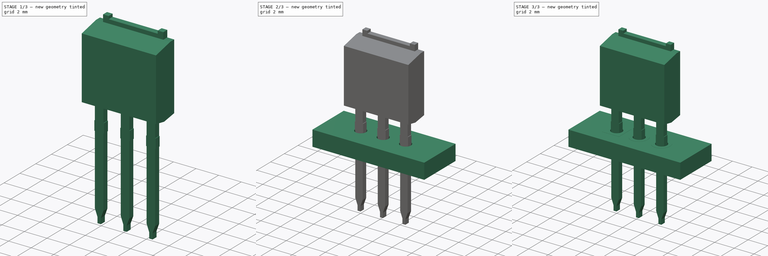
[diagram: build sequence overview — one tinted view per stage of 3, left to right]
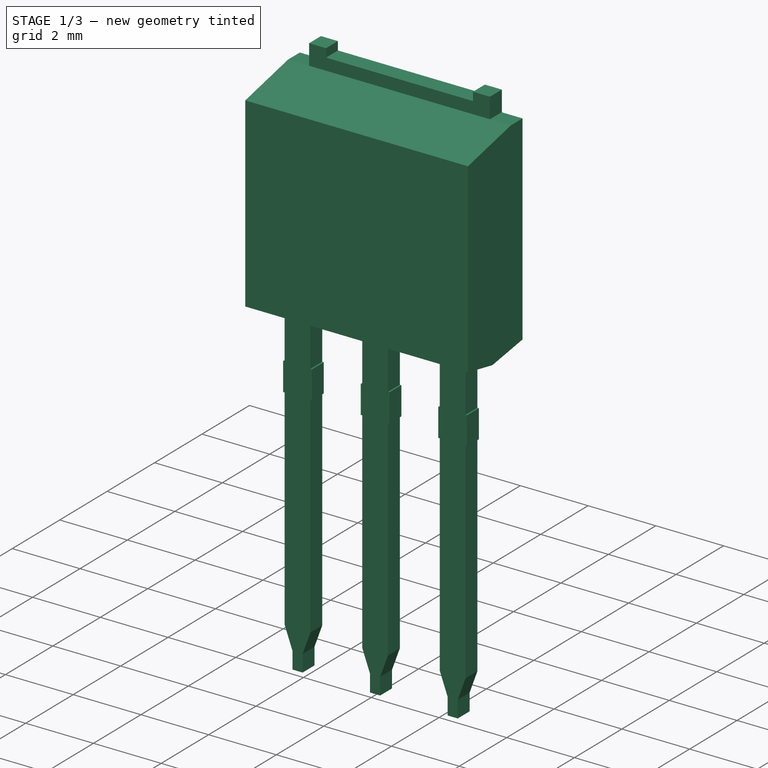
[diagram: stage 1 of 3 — iso view after this stage's code; geometry added in this stage tinted green]
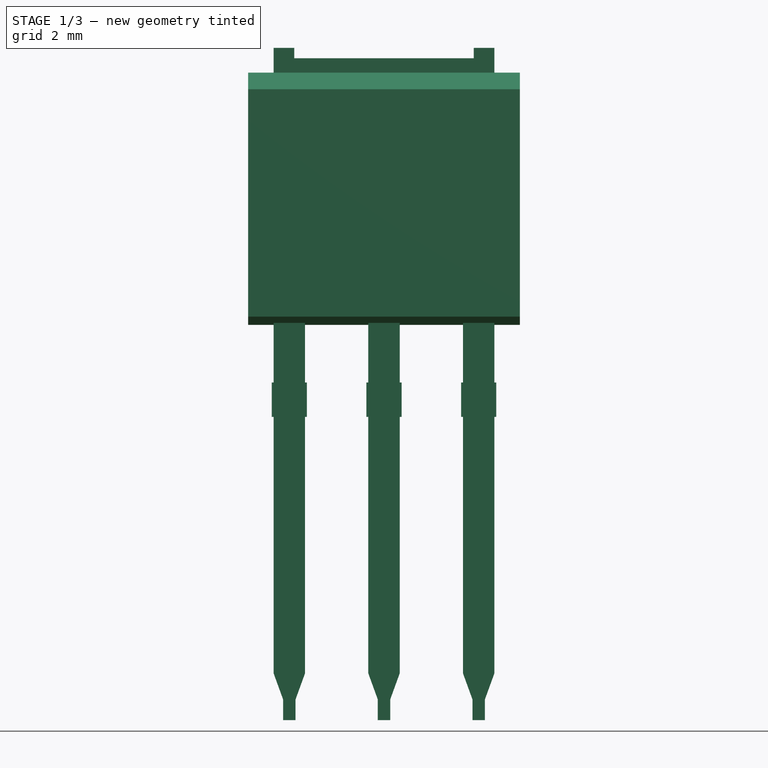
[diagram: stage 1 of 3 — front view after this stage's code; geometry added in this stage tinted green]
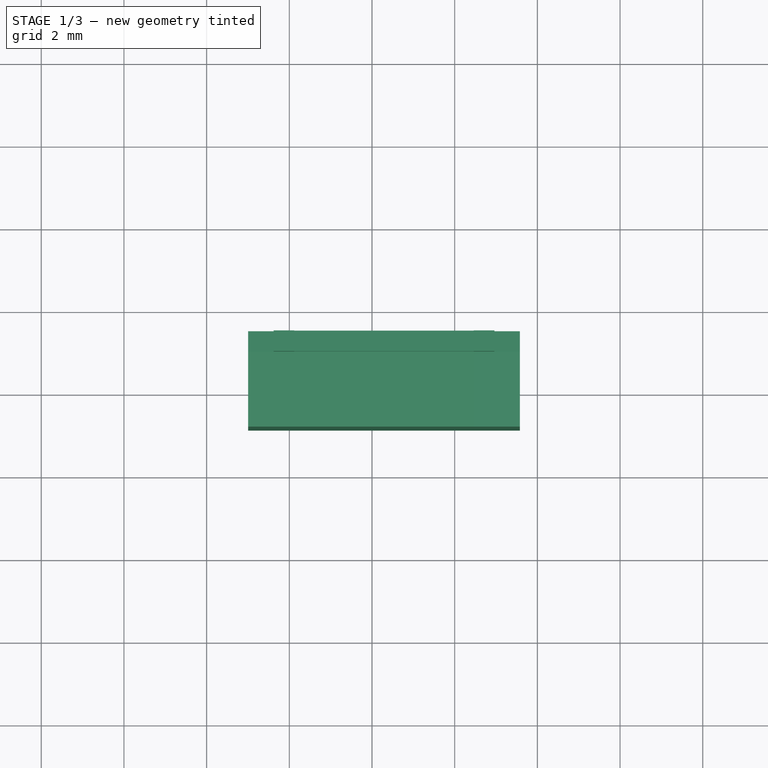
[diagram: stage 1 of 3 — top view after this stage's code; geometry added in this stage tinted green]
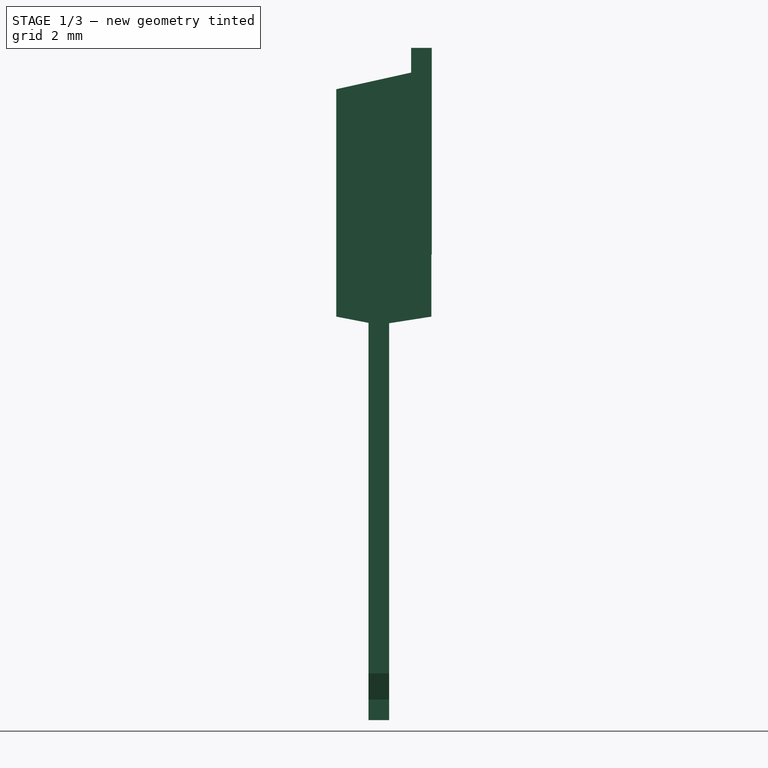
[diagram: stage 1 of 3 — right view after this stage's code; geometry added in this stage tinted green]
FCSTD DOCUMENT  (FreeCAD 0.16R6712 (Git))
Label: TO-251-3_Vertical
License: All rights reserved
LicenseURL: http://en.wikipedia.org/wiki/All_rights_reserved
objects: Part::FeaturePython×7, Sketcher::SketchObject×3, PartDesign::Pad×3, App::DocumentObjectGroup×1, Part::MultiFuse×1
note: 17 computed .brp shape members not serialized (recipe doc carries the construction recipe); baked Part::Feature solids carry a one-line shape summary decoded from their .brp

FEATURE [Sketcher::SketchObject] Sketch
  Placement = pos=(0,0,0) rot=(1,0,0;1.5708rad)
  expr: Constraints[61] = (1.6 + 2.28) / 2 - (1.52 + 0.7) / 2
  expr: Constraints[51] = (0.64 + 0.88) / 2
  expr: Constraints[56] = (8.9 + 9.65) / 2 - (1.6 + 2.28) / 2
  sketch-geometry (74):
    g0: LineSegment StartX=-0.425 StartY=0.83 StartZ=0 EndX=-0.38 EndY=0.83 EndZ=0
    g1: LineSegment StartX=0.425 StartY=0.83 StartZ=0 EndX=0.425 EndY=0 EndZ=0
    g2: LineSegment StartX=0.425 StartY=0 StartZ=0 EndX=0.38 EndY=0 EndZ=0
    g3: LineSegment StartX=-0.425 StartY=0 StartZ=0 EndX=-0.425 EndY=0.83 EndZ=0
    g4: LineSegment StartX=0.38 StartY=0 StartZ=0 EndX=0.38 EndY=-6.20308 EndZ=0
    g5: LineSegment StartX=-0.38 StartY=-6.20308 StartZ=0 EndX=-0.38 EndY=0 EndZ=0
    g6: LineSegment StartX=-0.38 StartY=0 StartZ=0 EndX=-0.425 EndY=0 EndZ=0
    g7: LineSegment StartX=0.38 StartY=0.83 StartZ=0 EndX=0.38 EndY=3.83 EndZ=0
    g8: LineSegment StartX=0.38 StartY=3.83 StartZ=0 EndX=-0.38 EndY=3.83 EndZ=0
    g9: LineSegment StartX=-0.38 StartY=3.83 StartZ=0 EndX=-0.38 EndY=0.83 EndZ=0
    g10: LineSegment StartX=0.38 StartY=0.83 StartZ=0 EndX=0.425 EndY=0.83 EndZ=0
    g11: LineSegment StartX=0.15 StartY=-6.835 StartZ=0 EndX=0.15 EndY=-7.335 EndZ=0
    g12: LineSegment StartX=0.15 StartY=-7.335 StartZ=0 EndX=-0.15 EndY=-7.335 EndZ=0
    g13: LineSegment StartX=-0.15 StartY=-7.335 StartZ=0 EndX=-0.15 EndY=-6.835 EndZ=0
    g14: LineSegment StartX=-0.38 StartY=-6.20308 StartZ=0 EndX=-0.15 EndY=-6.835 EndZ=0
    g15: LineSegment StartX=0.38 StartY=-6.20308 StartZ=0 EndX=0.15 EndY=-6.835 EndZ=0
    g16: LineSegment [constr] StartX=0 StartY=-7.335 StartZ=0 EndX=0 EndY=3.83 EndZ=0
    g17: LineSegment [constr] StartX=-0.38 StartY=-6.20308 StartZ=0 EndX=0.38 EndY=-6.20308 EndZ=0
    g18: LineSegment [constr] StartX=-0.15 StartY=-6.835 StartZ=0 EndX=0.15 EndY=-6.835 EndZ=0
    g19: LineSegment [constr] StartX=-0.38 StartY=0 StartZ=0 EndX=0.38 EndY=0 EndZ=0
    g20: LineSegment [constr] StartX=-0.38 StartY=0.83 StartZ=0 EndX=0.38 EndY=0.83 EndZ=0
    g21: GeomPoint [constr] X=0 Y=0.83 Z=0
    g22: GeomPoint [constr] X=0 Y=0 Z=0
    g23: GeomPoint [constr] X=0 Y=-6.20308 Z=0
    g24: LineSegment StartX=1.865 StartY=0.83 StartZ=0 EndX=1.91 EndY=0.83 EndZ=0
    g25: LineSegment StartX=2.715 StartY=0.83 StartZ=0 EndX=2.715 EndY=0 EndZ=0
    g26: LineSegment StartX=2.715 StartY=0 StartZ=0 EndX=2.67 EndY=0 EndZ=0
    g27: LineSegment StartX=1.865 StartY=0 StartZ=0 EndX=1.865 EndY=0.83 EndZ=0
    g28: LineSegment StartX=2.67 StartY=0 StartZ=0 EndX=2.67 EndY=-6.20308 EndZ=0
    g29: LineSegment StartX=1.91 StartY=-6.20308 StartZ=0 EndX=1.91 EndY=0 EndZ=0
    g30: LineSegment StartX=1.91 StartY=0 StartZ=0 EndX=1.865 EndY=0 EndZ=0
    g31: LineSegment StartX=2.67 StartY=0.83 StartZ=0 EndX=2.67 EndY=3.83 EndZ=0
    g32: LineSegment StartX=2.67 StartY=3.83 StartZ=0 EndX=1.91 EndY=3.83 EndZ=0
    g33: LineSegment StartX=1.91 StartY=3.83 StartZ=0 EndX=1.91 EndY=0.83 EndZ=0
    g34: LineSegment StartX=2.67 StartY=0.83 StartZ=0 EndX=2.715 EndY=0.83 EndZ=0
    g35: LineSegment StartX=2.44 StartY=-6.835 StartZ=0 EndX=2.44 EndY=-7.335 EndZ=0
    g36: LineSegment StartX=2.44 StartY=-7.335 StartZ=0 EndX=2.14 EndY=-7.335 EndZ=0
    g37: LineSegment StartX=2.14 StartY=-7.335 StartZ=0 EndX=2.14 EndY=-6.835 EndZ=0
    g38: LineSegment StartX=1.91 StartY=-6.20308 StartZ=0 EndX=2.14 EndY=-6.835 EndZ=0
    g39: LineSegment StartX=2.67 StartY=-6.20308 StartZ=0 EndX=2.44 EndY=-6.835 EndZ=0
    g40: LineSegment [constr] StartX=2.29 StartY=-7.335 StartZ=0 EndX=2.29 EndY=3.83 EndZ=0
    g41: LineSegment [constr] StartX=1.91 StartY=-6.20308 StartZ=0 EndX=2.67 EndY=-6.20308 EndZ=0
    g42: LineSegment [constr] StartX=2.14 StartY=-6.835 StartZ=0 EndX=2.44 EndY=-6.835 EndZ=0
    g43: LineSegment [constr] StartX=1.91 StartY=0 StartZ=0 EndX=2.67 EndY=0 EndZ=0
    g44: LineSegment [constr] StartX=1.91 StartY=0.83 StartZ=0 EndX=2.67 EndY=0.83 EndZ=0
    g45: GeomPoint [constr] X=2.29 Y=0.83 Z=0
    g46: GeomPoint [constr] X=2.29 Y=0 Z=0
    g47: GeomPoint [constr] X=2.29 Y=-6.20308 Z=0
    g48: LineSegment [constr] StartX=0 StartY=-7.335 StartZ=0 EndX=2.29 EndY=-7.335 EndZ=0
    g49: LineSegment StartX=4.155 StartY=0.83 StartZ=0 EndX=4.2 EndY=0.83 EndZ=0
    g50: LineSegment StartX=5.005 StartY=0.83 StartZ=0 EndX=5.005 EndY=0 EndZ=0
    g51: LineSegment StartX=5.005 StartY=0 StartZ=0 EndX=4.96 EndY=0 EndZ=0
    g52: LineSegment StartX=4.155 StartY=0 StartZ=0 EndX=4.155 EndY=0.83 EndZ=0
    g53: LineSegment StartX=4.96 StartY=0 StartZ=0 EndX=4.96 EndY=-6.20308 EndZ=0
    g54: LineSegment StartX=4.2 StartY=-6.20308 StartZ=0 EndX=4.2 EndY=0 EndZ=0
    g55: LineSegment StartX=4.2 StartY=0 StartZ=0 EndX=4.155 EndY=0 EndZ=0
    g56: LineSegment StartX=4.96 StartY=0.83 StartZ=0 EndX=4.96 EndY=3.83 EndZ=0
    g57: LineSegment StartX=4.96 StartY=3.83 StartZ=0 EndX=4.2 EndY=3.83 EndZ=0
    g58: LineSegment StartX=4.2 StartY=3.83 StartZ=0 EndX=4.2 EndY=0.83 EndZ=0
    g59: LineSegment StartX=4.96 StartY=0.83 StartZ=0 EndX=5.005 EndY=0.83 EndZ=0
    g60: LineSegment StartX=4.73 StartY=-6.835 StartZ=0 EndX=4.73 EndY=-7.335 EndZ=0
    g61: LineSegment StartX=4.73 StartY=-7.335 StartZ=0 EndX=4.43 EndY=-7.335 EndZ=0
    g62: LineSegment StartX=4.43 StartY=-7.335 StartZ=0 EndX=4.43 EndY=-6.835 EndZ=0
    g63: LineSegment StartX=4.2 StartY=-6.20308 StartZ=0 EndX=4.43 EndY=-6.835 EndZ=0
    g64: LineSegment StartX=4.96 StartY=-6.20308 StartZ=0 EndX=4.73 EndY=-6.835 EndZ=0
    g65: LineSegment [constr] StartX=4.58 StartY=-7.335 StartZ=0 EndX=4.58 EndY=3.83 EndZ=0
    g66: LineSegment [constr] StartX=4.2 StartY=-6.20308 StartZ=0 EndX=4.96 EndY=-6.20308 EndZ=0
    g67: LineSegment [constr] StartX=4.43 StartY=-6.835 StartZ=0 EndX=4.73 EndY=-6.835 EndZ=0
    g68: LineSegment [constr] StartX=4.2 StartY=0 StartZ=0 EndX=4.96 EndY=0 EndZ=0
    g69: LineSegment [constr] StartX=4.2 StartY=0.83 StartZ=0 EndX=4.96 EndY=0.83 EndZ=0
    g70: GeomPoint [constr] X=4.58 Y=0.83 Z=0
    g71: GeomPoint [constr] X=4.58 Y=0 Z=0
    g72: GeomPoint [constr] X=4.58 Y=-6.20308 Z=0
    g73: LineSegment [constr] StartX=2.29 StartY=-7.335 StartZ=0 EndX=4.58 EndY=-7.335 EndZ=0
  constraints (196):
    c: Coincident(g10,g1)
    c: Coincident(g1,g2)
    c: Coincident(g6,g3)
    c: Coincident(g3,g0)
    c: Horizontal(g0)
    c: Horizontal(g2)
    c: Vertical(g1)
    c: Vertical(g3)
    c: Vertical(g4)
    c: Vertical(g5)
    c: PointOnObject(g5,g2)
    c: PointOnObject(g6,g5)
    c: Tangent(g2,g6)
    c: Coincident(g2,g4)
    c: Coincident(g7,g8)
    c: Coincident(g8,g9)
    c: Horizontal(g8)
    c: Vertical(g7)
    c: Vertical(g9)
    c: PointOnObject(g9,g0)
    c: PointOnObject(g0,g9)
    c: Tangent(g0,g10)
    c: Coincident(g11,g12)
    c: Coincident(g12,g13)
    c: Horizontal(g12)
    c: Vertical(g11)
    c: Vertical(g13)
    c: Coincident(g15,g4)
    c: Coincident(g5,g14)
    c: PointOnObject(g16,g12)
    c: PointOnObject(g16,g8)
    c: Symmetric(g8,g8,g16)
    c: Symmetric(g12,g12,g16)
    c: Coincident(g13,g14)
    c: Coincident(g11,g15)
    c: Coincident(g17,g5)
    c: Horizontal(g17)
    c: Coincident(g18,g13)
    c: Horizontal(g18)
    c: Coincident(g19,g5)
    c: Coincident(g19,g2)
    c: Coincident(g20,g0)
    c: Coincident(g20,g10)
    c: Coincident(g7,g10)
    c: PointOnObject(g21,g16)
    c: PointOnObject(g22,g16)
    c: PointOnObject(g23,g16)
    c: Coincident(g11,g18)
    c: Symmetric(g17,g17,g23)
    c: Symmetric(g19,g19,g22)
    c: Symmetric(g20,g20,g21)
    c: DistanceX(g17,g17) = 0.76
    c: Equal(g19,g20)
    c: DistanceX(g0,g1) = 0.85
    c: Equal(g0,g10)
    c: PointOnObject(g1,g-1)
    c: DistanceY(g16,g-1) = 7.335
    c: DistanceY(g13,g13) = 0.5
    c: DistanceX(g12,g12) = 0.3
    c: Angle(g4,g15) = 2.79253
    c: Coincident(g17,g4)
    c: DistanceY(g3,g0) = 0.83
    c: DistanceY(g9,g9) = 3
    c: Coincident(g34,g25)
    c: Coincident(g25,g26)
    c: Coincident(g30,g27)
    c: Coincident(g27,g24)
    c: Horizontal(g24)
    c: Horizontal(g26)
    c: Vertical(g25)
    c: Vertical(g27)
    c: Vertical(g28)
    c: Vertical(g29)
    c: PointOnObject(g29,g26)
    c: PointOnObject(g30,g29)
    c: Tangent(g26,g30)
    c: Coincident(g26,g28)
    c: Coincident(g31,g32)
    c: Coincident(g32,g33)
    c: Horizontal(g32)
    c: Vertical(g31)
    c: Vertical(g33)
    c: PointOnObject(g33,g24)
    c: PointOnObject(g24,g33)
    c: Tangent(g24,g34)
    c: Coincident(g35,g36)
    c: Coincident(g36,g37)
    c: Horizontal(g36)
    c: Vertical(g35)
    c: Vertical(g37)
    c: Coincident(g39,g28)
    c: Coincident(g29,g38)
    c: PointOnObject(g40,g36)
    c: PointOnObject(g40,g32)
    c: Symmetric(g32,g32,g40)
    c: Symmetric(g36,g36,g40)
    c: Coincident(g37,g38)
    c: Coincident(g35,g39)
    c: Coincident(g41,g29)
    c: Horizontal(g41)
    c: Coincident(g42,g37)
    c: Horizontal(g42)
    c: Coincident(g43,g29)
    c: Coincident(g43,g26)
    c: Coincident(g44,g24)
    c: Coincident(g44,g34)
    c: Coincident(g31,g34)
    c: PointOnObject(g45,g40)
    c: PointOnObject(g46,g40)
    c: PointOnObject(g47,g40)
    c: Coincident(g35,g42)
    c: Symmetric(g41,g41,g47)
    c: Symmetric(g43,g43,g46)
    c: Symmetric(g44,g44,g45)
    c: Equal(g17,g41) = 0.76
    c: Equal(g43,g44)
    c: Equal(g24,g34)
    c: Equal(g13,g37) = 0.5
    c: Equal(g12,g36) = 0.3
    c: Coincident(g41,g28)
    c: Equal(g9,g33) = 3
    c: Coincident(g48,g16)
    c: Coincident(g48,g40)
    c: Horizontal(g48)
    c: DistanceX(g48,g48) = 2.29
    c: PointOnObject(g25,g-1)
    c: Equal(g27,g3)
    c: Coincident(g22,g-1)
    c: Equal(g4,g28)
    c: DistanceX(g40,g72) = 2.29
    c: Coincident(g59,g50)
    c: Coincident(g50,g51)
    c: Coincident(g55,g52)
    c: Coincident(g52,g49)
    c: Horizontal(g49)
    c: Horizontal(g51)
    c: Vertical(g50)
    c: Vertical(g52)
    c: Vertical(g53)
    c: Vertical(g54)
    c: PointOnObject(g54,g51)
    c: PointOnObject(g55,g54)
    c: Tangent(g51,g55)
    c: Coincident(g51,g53)
    c: Coincident(g56,g57)
    c: Coincident(g57,g58)
    c: Horizontal(g57)
    c: Vertical(g56)
    c: Vertical(g58)
    c: PointOnObject(g58,g49)
    c: PointOnObject(g49,g58)
    c: Tangent(g49,g59)
    c: Coincident(g60,g61)
    c: Coincident(g61,g62)
    c: Horizontal(g61)
    c: Vertical(g60)
    c: Vertical(g62)
    c: Coincident(g64,g53)
    c: Coincident(g54,g63)
    c: PointOnObject(g65,g61)
    c: PointOnObject(g65,g57)
    c: Symmetric(g57,g57,g65)
    c: Symmetric(g61,g61,g65)
    c: Coincident(g62,g63)
    c: Coincident(g60,g64)
    c: Coincident(g66,g54)
    c: Horizontal(g66)
    c: Coincident(g67,g62)
    c: Horizontal(g67)
    c: Coincident(g68,g54)
    c: Coincident(g68,g51)
    c: Coincident(g69,g49)
    c: Coincident(g69,g59)
    c: Coincident(g56,g59)
    c: PointOnObject(g70,g65)
    c: PointOnObject(g71,g65)
    c: PointOnObject(g72,g65)
    c: Coincident(g60,g67)
    c: Symmetric(g66,g66,g72)
    c: Symmetric(g68,g68,g71)
    c: Symmetric(g69,g69,g70)
    c: Equal(g68,g69)
    c: Equal(g49,g59)
    c: Coincident(g66,g53)
    c: Equal(g69,g44)
    c: Equal(g55,g30)
    c: Equal(g30,g6)
    c: Coincident(g73,g40)
    c: Coincident(g65,g73)
    c: Horizontal(g73)
    c: Equal(g37,g62)
    c: Equal(g54,g29)
    c: Equal(g58,g33)
    c: Equal(g52,g27)
    c: Equal(g63,g38)
    c: Equal(g67,g42)
FEATURE [PartDesign::Pad] Pad
  Length = 0.5
  Length2 = 100
  Midplane = true
  Placement = pos=(0,0,0) rot=(1,0,0;1.5708rad)
  Reversed = true
  Sketch = -> Sketch
  Type = 0
FEATURE [Sketcher::SketchObject] Sketch001
  Placement = pos=(2.29,0,0) rot=(0.57735,0.57735,0.57735;2.0944rad)
  expr: Constraints[15] = (5.9 + 6.3) / 2
  sketch-geometry (7):
    g0: LineSegment StartX=0 StartY=2.225 StartZ=0 EndX=-1.03 EndY=2.425 EndZ=0
    g1: LineSegment StartX=-1.03 StartY=2.425 StartZ=0 EndX=-1.03 EndY=7.925 EndZ=0
    g2: LineSegment StartX=-1.03 StartY=7.925 StartZ=0 EndX=0.77 EndY=8.325 EndZ=0
    g3: LineSegment StartX=0.77 StartY=8.325 StartZ=0 EndX=1.27 EndY=8.325 EndZ=0
    g4: LineSegment StartX=1.27 StartY=8.325 StartZ=0 EndX=1.27 EndY=2.425 EndZ=0
    g5: LineSegment StartX=1.27 StartY=2.425 StartZ=0 EndX=0 EndY=2.225 EndZ=0
    g6: LineSegment [constr] StartX=-1.03 StartY=2.425 StartZ=0 EndX=1.27 EndY=2.425 EndZ=0
  constraints (20):
    c: PointOnObject(g0,g-2)
    c: Coincident(g1,g0)
    c: Vertical(g1)
    c: Coincident(g2,g1)
    c: Horizontal(g3)
    c: Coincident(g4,g3)
    c: Vertical(g4)
    c: Coincident(g5,g4)
    c: Coincident(g5,g0)
    c: Coincident(g6,g0)
    c: Coincident(g6,g4)
    c: Horizontal(g6)
    c: DistanceX(g0,g4) = 1.27
    c: DistanceX(g1,g3) = 2.3
    c: DistanceY(g0,g4) = 0.2
    c: DistanceY(g0,g3) = 6.1
    c: Coincident(g2,g3)
    c: DistanceY(g-1,g0) = 2.225
    c: DistanceX(g3,g3) = 0.5
    c: DistanceY(g1,g2) = 0.4
FEATURE [PartDesign::Pad] Pad001
  Length = 6.575
  Length2 = 100
  Midplane = true
  Placement = pos=(2.29,0,0) rot=(0.57735,0.57735,0.57735;2.0944rad)
  Sketch = -> Sketch001
  Type = 0
  expr: Length = (6.35 + 6.8) / 2
FEATURE [Sketcher::SketchObject] Sketch002
  Placement = pos=(0,1.28,0) rot=(-1,0,0;4.71239rad)
  expr: Constraints[29] = (5.9 + 6.3) / 2 + (0.5 + 1.27) / 2 + (1.6 + 2.28) / 2
  sketch-geometry (11):
    g0: LineSegment StartX=4.96 StartY=8.925 StartZ=0 EndX=4.96 EndY=3.925 EndZ=0
    g1: LineSegment StartX=4.96 StartY=3.925 StartZ=0 EndX=-0.38 EndY=3.925 EndZ=0
    g2: LineSegment StartX=-0.38 StartY=3.925 StartZ=0 EndX=-0.38 EndY=8.925 EndZ=0
    g3: LineSegment StartX=-0.38 StartY=8.925 StartZ=0 EndX=0.12 EndY=8.925 EndZ=0
    g4: LineSegment StartX=0.12 StartY=8.925 StartZ=0 EndX=0.12 EndY=8.675 EndZ=0
    g5: LineSegment StartX=0.12 StartY=8.675 StartZ=0 EndX=4.46 EndY=8.675 EndZ=0
    g6: LineSegment StartX=4.46 StartY=8.675 StartZ=0 EndX=4.46 EndY=8.925 EndZ=0
    g7: LineSegment StartX=4.46 StartY=8.925 StartZ=0 EndX=4.96 EndY=8.925 EndZ=0
    g8: GeomPoint [constr] X=2.29 Y=8.925 Z=0
    g9: LineSegment [constr] StartX=2.29 StartY=8.925 StartZ=0 EndX=0 EndY=8.925 EndZ=0
    g10: LineSegment [constr] StartX=-0.38 StartY=8.925 StartZ=0 EndX=4.96 EndY=8.925 EndZ=0
  constraints (30):
    c: Coincident(g0,g1)
    c: Coincident(g1,g2)
    c: Horizontal(g1)
    c: Vertical(g0)
    c: Vertical(g2)
    c: Coincident(g4,g3)
    c: Coincident(g5,g4)
    c: Horizontal(g5)
    c: Coincident(g6,g5)
    c: Coincident(g7,g6)
    c: Vertical(g4)
    c: Vertical(g6)
    c: Symmetric(g2,g0,g8)
    c: Equal(g3,g7)
    c: Coincident(g9,g8)
    c: PointOnObject(g9,g-2)
    c: Horizontal(g9)
    c: PointOnObject(g3,g9)
    c: Coincident(g3,g2)
    c: Coincident(g7,g0)
    c: Coincident(g10,g2)
    c: Coincident(g10,g0)
    c: Horizontal(g10)
    c: DistanceX(g9,g9) = 2.29
    c: PointOnObject(g6,g10)
    c: DistanceX(g2,g0) = 5.34
    c: DistanceX(g7,g7) = 0.5
    c: DistanceY(g6,g6) = 0.25
    c: DistanceY(g0,g0) = 5
    c: DistanceY(g-1,g2) = 8.925
FEATURE [PartDesign::Pad] Pad002
  Length = 0.5
  Length2 = 100
  Placement = pos=(0,1.28,0) rot=(-1,0,0;4.71239rad)
  Sketch = -> Sketch002
  Type = 0
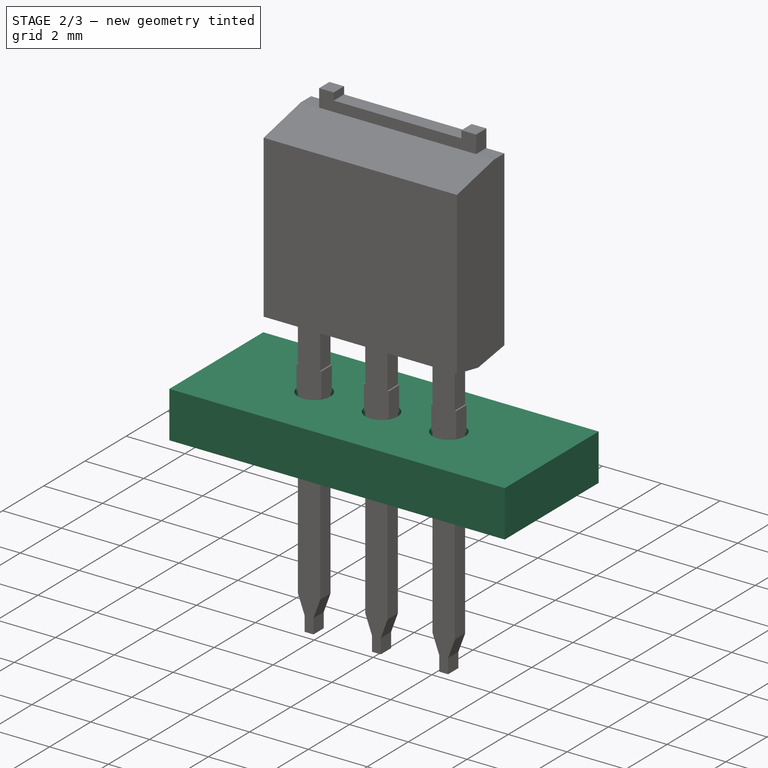
[diagram: stage 2 of 3 — iso view after this stage's code; geometry added in this stage tinted green]
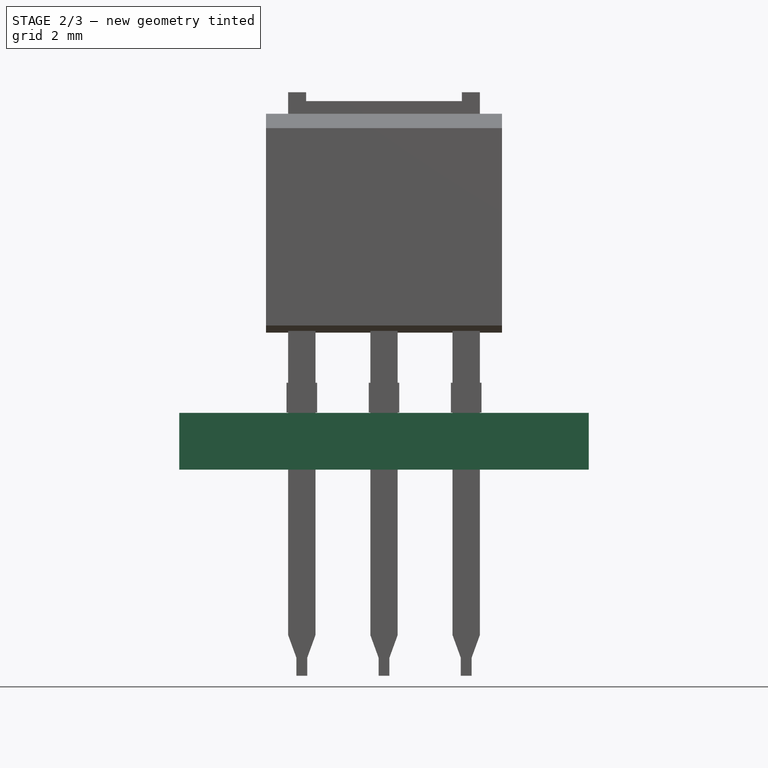
[diagram: stage 2 of 3 — front view after this stage's code; geometry added in this stage tinted green]
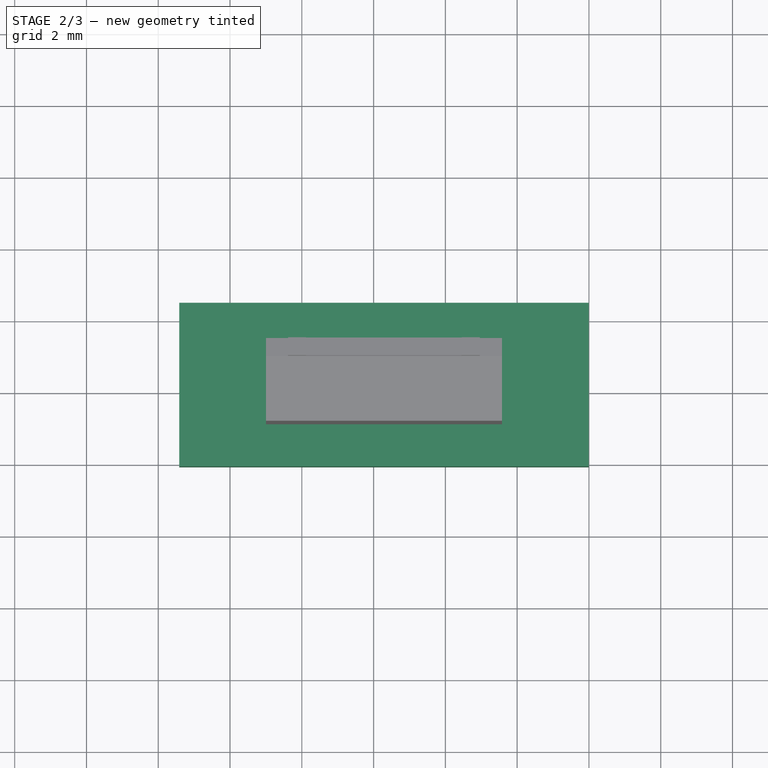
[diagram: stage 2 of 3 — top view after this stage's code; geometry added in this stage tinted green]
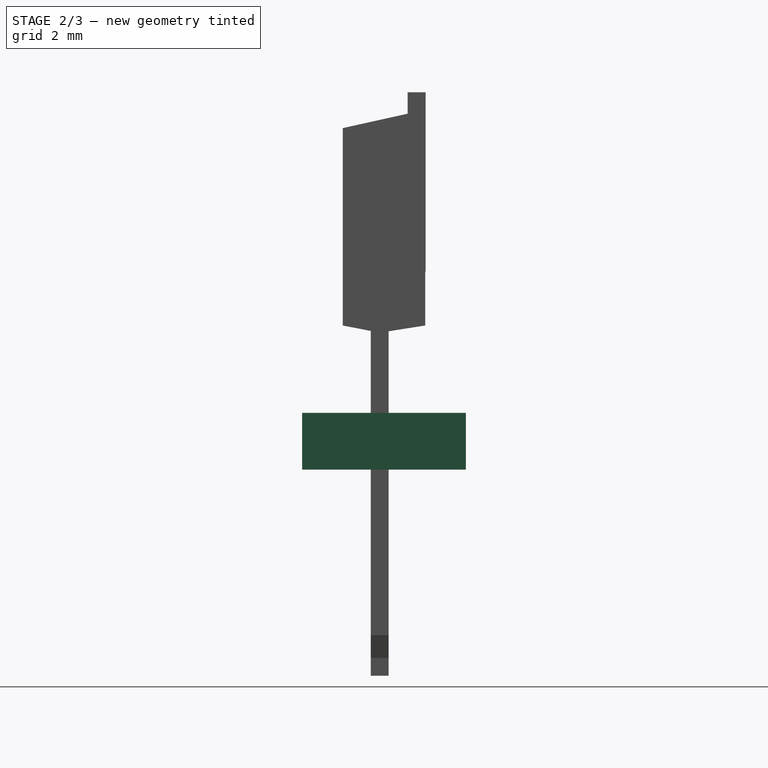
[diagram: stage 2 of 3 — right view after this stage's code; geometry added in this stage tinted green]
FEATURE [Part::FeaturePython] newPCB  label="Pcb"  # a2plus imported part (geometry in sourceFile) (typed FeaturePython)
  fixedPosition = true
FEATURE [App::DocumentObjectGroup] TO_251_3_Vertical_fp
  Group = -> [FCrtYd_lines,FFab_lines,Filk_lines,TopPads,BotPads,THPs,newPCB]
FEATURE [Part::MultiFuse] Pad001_mp_cp  label="TO-251-3_Vertical"
  Shapes = -> [Pad001,Pad,Pad002]
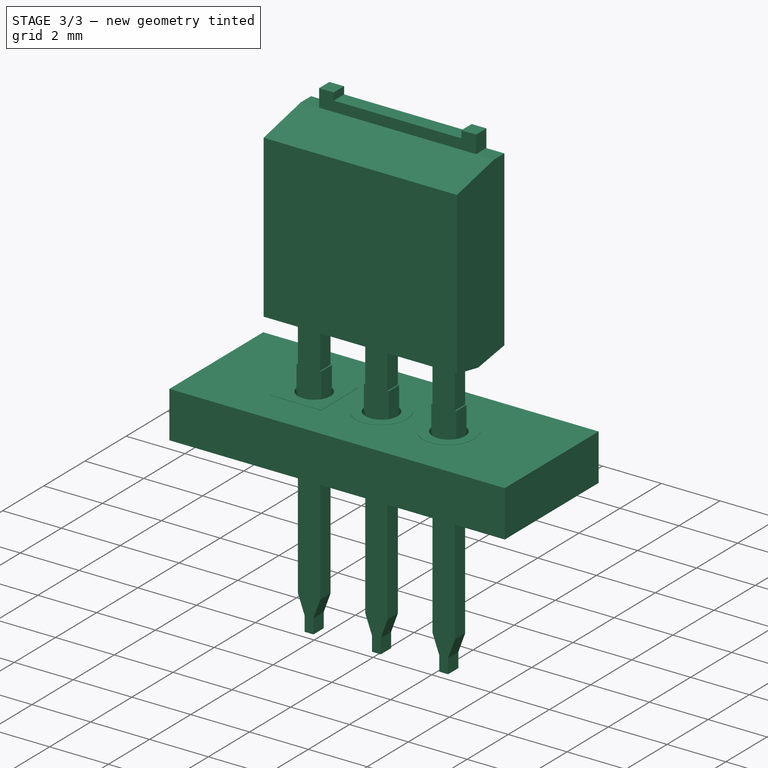
[diagram: stage 3 of 3 — iso view after this stage's code; geometry added in this stage tinted green]
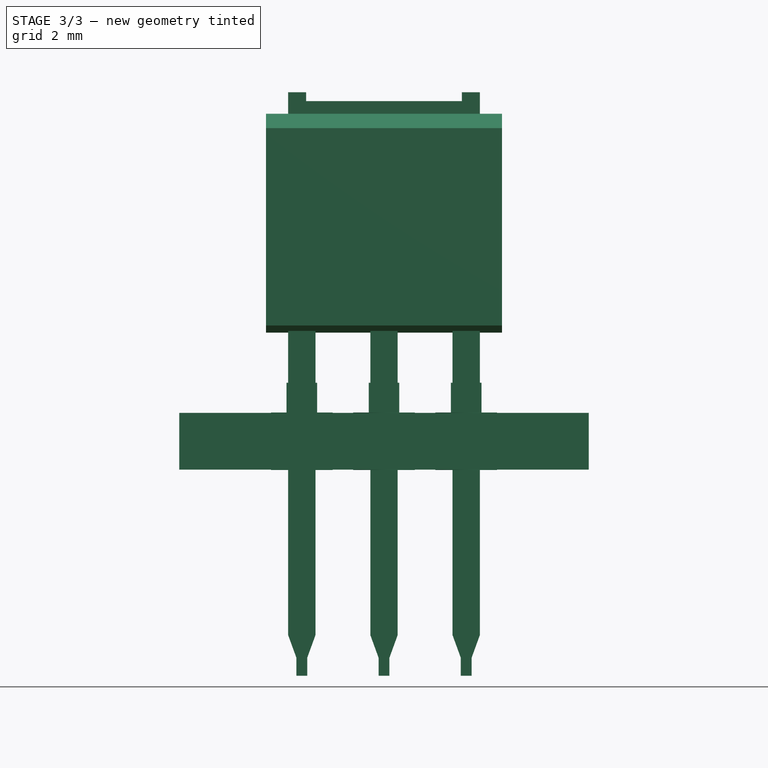
[diagram: stage 3 of 3 — front view after this stage's code; geometry added in this stage tinted green]
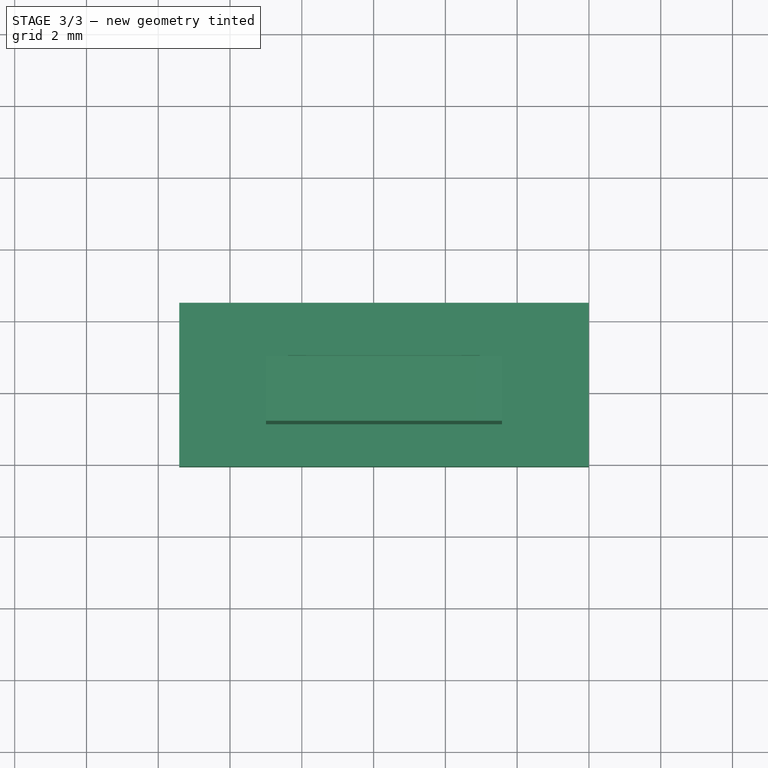
[diagram: stage 3 of 3 — top view after this stage's code; geometry added in this stage tinted green]
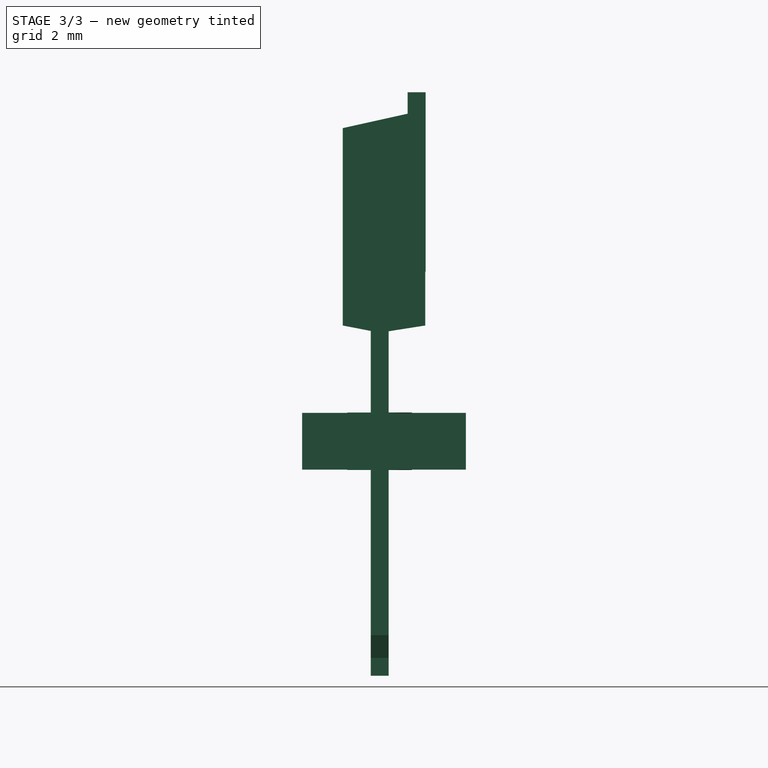
[diagram: stage 3 of 3 — right view after this stage's code; geometry added in this stage tinted green]
FEATURE [Part::FeaturePython] FCrtYd_lines  label="FCrtYd"  # a2plus imported part (geometry in sourceFile) (typed FeaturePython)
  fixedPosition = true
FEATURE [Part::FeaturePython] FFab_lines  label="FFab"  # a2plus imported part (geometry in sourceFile) (typed FeaturePython)
  fixedPosition = true
FEATURE [Part::FeaturePython] Filk_lines  label="FrontSilk"  # a2plus imported part (geometry in sourceFile) (typed FeaturePython)
  fixedPosition = true
FEATURE [Part::FeaturePython] TopPads  # a2plus imported part (geometry in sourceFile) (typed FeaturePython)
  fixedPosition = true
FEATURE [Part::FeaturePython] BotPads  # a2plus imported part (geometry in sourceFile) (typed FeaturePython)
  fixedPosition = true
FEATURE [Part::FeaturePython] THPs  label="PTHs"  # a2plus imported part (geometry in sourceFile) (typed FeaturePython)
  fixedPosition = true
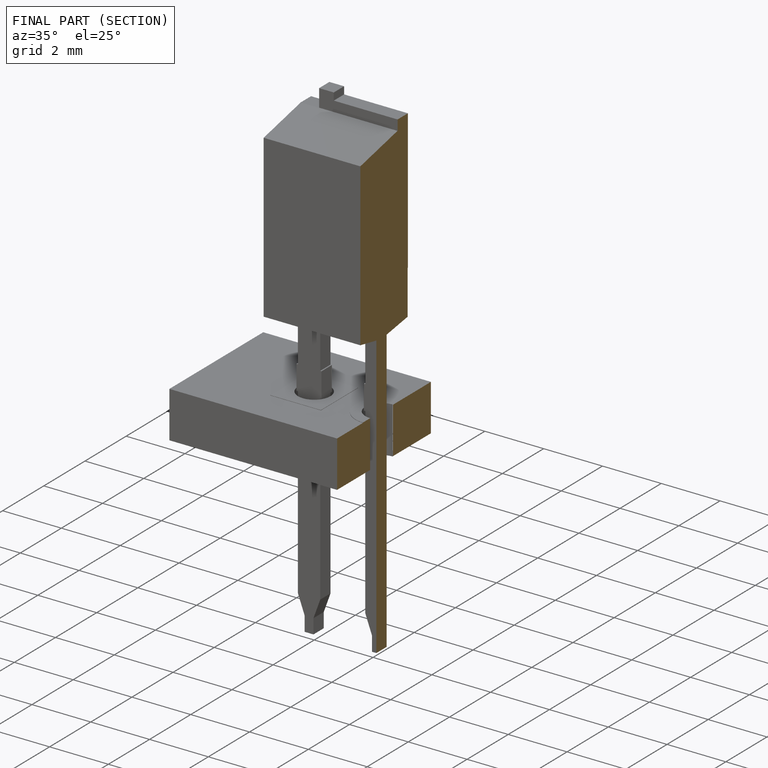
[diagram: finished part — half-section view (interior)]
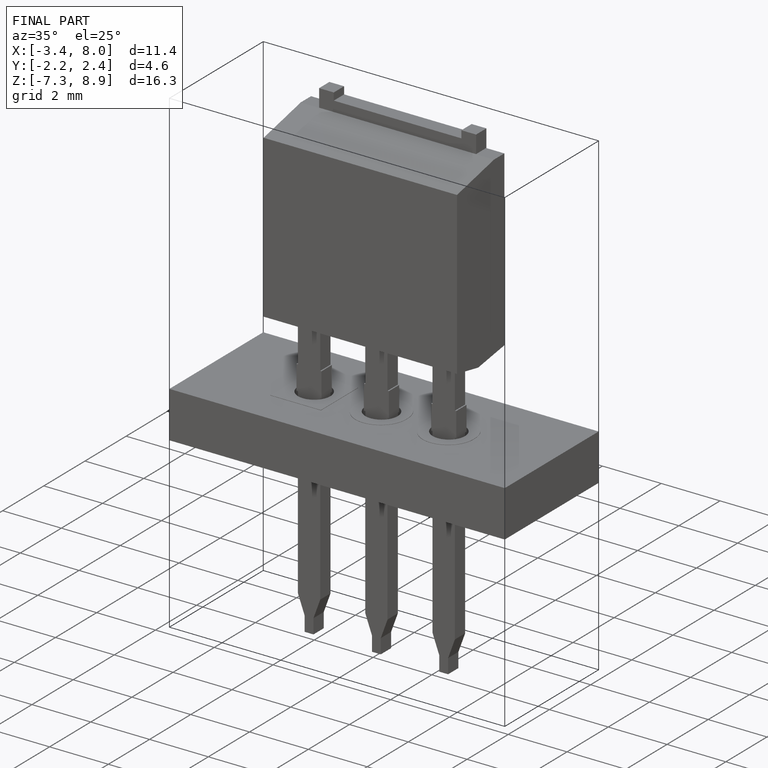
[diagram: finished part — iso view with bounding-box wireframe]
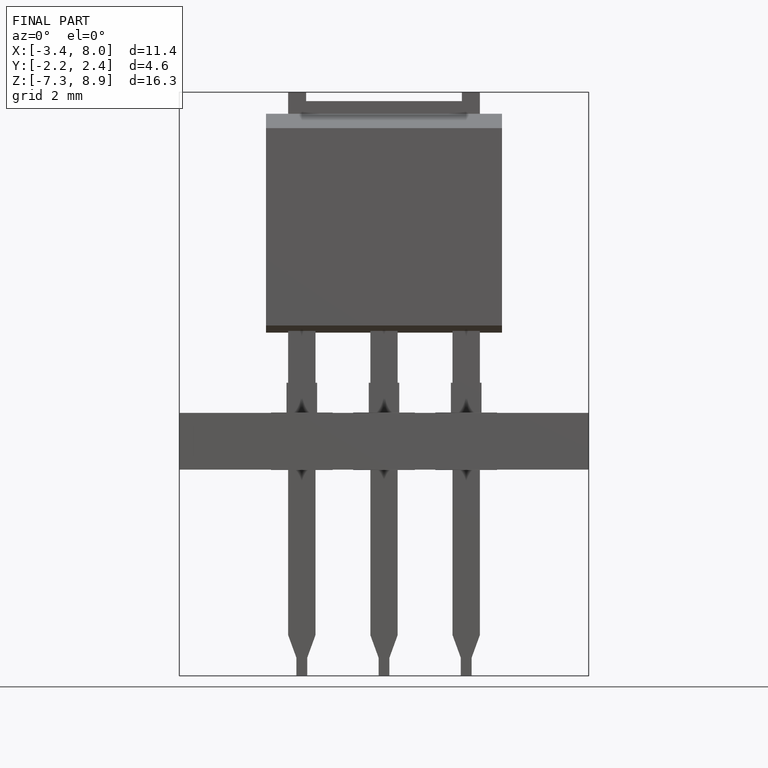
[diagram: finished part — front view with bounding-box wireframe]
